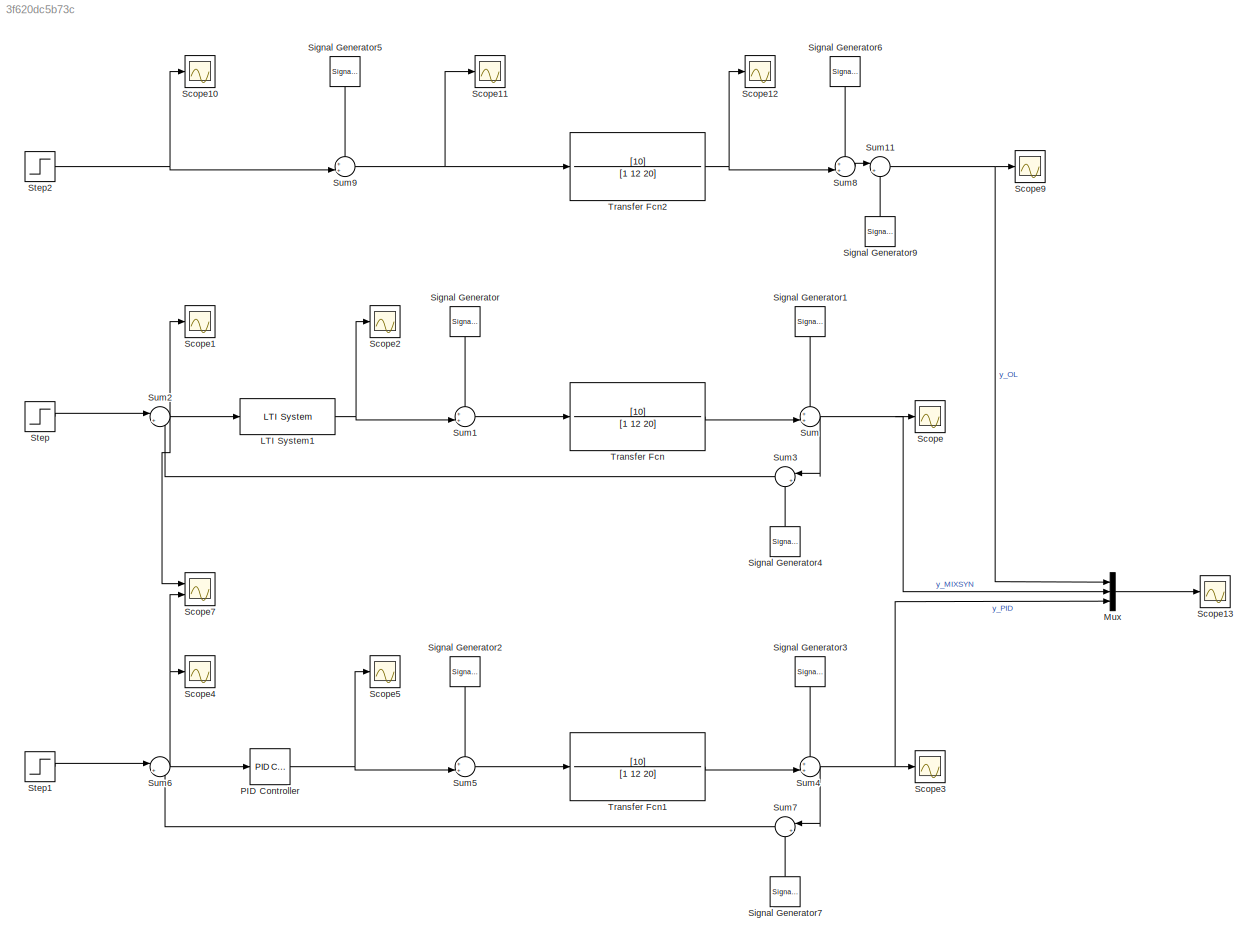
MODEL slx_3f620dc5b73c
KIND model
CONFIG AbsTol = auto
CONFIG EnableMultiTasking = off
CONFIG FixedStep = auto
CONFIG MaxStep = auto
CONFIG MinStep = auto
CONFIG RelTol = 1e-3
CONFIG SampleTimeConstraint = Unconstrained
CONFIG SolverName = VariableStepAuto
CONFIG StartTime = 0.0
CONFIG StopTime = 10
BLOCK [Reference] LTI System1  REF=cstblocks/LTI System
  Ports = [1, 1]
  SourceBlock = cstblocks/LTI System
  SourceProductBaseCode = CT
  SourceType = LTI Block
BLOCK [Mux] Mux
  DisplayOption = bar
  Inputs = 3
  Ports = [3, 1]
BLOCK [Reference] PID Controller  REF=pid_lib/PID Controller
  Ports = [1, 1]
  SourceBlock = pid_lib/PID Controller
  SourceProductBaseCode = SL
  SourceType = PID 1dof
BLOCK [Scope] Scope
  Floating = off
  NumInputPorts = 1
  Ports = [1]
  ScopeSpecificationString = Simulink.scopes.TimeScopeBlockCfg('CurrentConfiguration', extmgr.ConfigurationSet(extmgr.Configuration('Core','General UI',true),extmgr.Configuration('Core','Source UI',true),extmgr.Configuration('Sources','WiredSimulink',true),extmgr.Configuration('Visuals','Time Domain',true,'SerializedDisplays',{struct('MinYLimReal','-1.25171','MaxYLimReal','11.2654','YLabelReal','','MinYLimMag','0.00000','MaxY...<+1405ch>
BLOCK [Scope] Scope1
  Floating = off
  NumInputPorts = 1
  Ports = [1]
  ScopeSpecificationString = Simulink.scopes.TimeScopeBlockCfg('CurrentConfiguration', extmgr.ConfigurationSet(extmgr.Configuration('Core','General UI',true),extmgr.Configuration('Core','Source UI',true),extmgr.Configuration('Sources','WiredSimulink',true,'DataLoggingVariableName','ScopeData1'),extmgr.Configuration('Visuals','Time Domain',true,'SerializedDisplays',{struct('MinYLimReal','-1.76743','MaxYLimReal','11.30749','YLa...<+1411ch>
BLOCK [Scope] Scope10
  Floating = off
  NumInputPorts = 1
  Ports = [1]
  ScopeSpecificationString = Simulink.scopes.TimeScopeBlockCfg('CurrentConfiguration', extmgr.ConfigurationSet(extmgr.Configuration('Core','General UI',true),extmgr.Configuration('Core','Source UI',true),extmgr.Configuration('Sources','WiredSimulink',true,'DataLoggingVariableName','ScopeData8'),extmgr.Configuration('Visuals','Time Domain',true,'SerializedDisplays',{struct('MinYLimReal','-0.12501','MaxYLimReal','1.125','YLabel...<+1400ch>
BLOCK [Scope] Scope11
  Floating = off
  NumInputPorts = 1
  Ports = [1]
  ScopeSpecificationString = Simulink.scopes.TimeScopeBlockCfg('CurrentConfiguration', extmgr.ConfigurationSet(extmgr.Configuration('Core','General UI',true),extmgr.Configuration('Core','Source UI',true),extmgr.Configuration('Sources','WiredSimulink',true,'DataLoggingVariableName','ScopeData9'),extmgr.Configuration('Visuals','Time Domain',true,'SerializedDisplays',{struct('MinYLimReal','9.99992','MaxYLimReal','10.00073','YLab...<+1365ch>
BLOCK [Scope] Scope12
  Floating = off
  NumInputPorts = 1
  Ports = [1]
  ScopeSpecificationString = Simulink.scopes.TimeScopeBlockCfg('CurrentConfiguration', extmgr.ConfigurationSet(extmgr.Configuration('Core','General UI',true),extmgr.Configuration('Core','Source UI',true),extmgr.Configuration('Sources','WiredSimulink',true,'DataLoggingVariableName','ScopeData11'),extmgr.Configuration('Visuals','Time Domain',true),extmgr.Configuration('Tools','Plot Navigation',true),extmgr.Configuration('Tools'...<+41ch>
BLOCK [Scope] Scope13
  Floating = off
  NumInputPorts = 1
  Ports = [1]
  ScopeSpecificationString = Simulink.scopes.TimeScopeBlockCfg('CurrentConfiguration', extmgr.ConfigurationSet(extmgr.Configuration('Core','General UI',true,'FigureColor',[1 1 1]),extmgr.Configuration('Core','Source UI',true),extmgr.Configuration('Sources','WiredSimulink',true,'DataLoggingVariableName','ScopeData2'),extmgr.Configuration('Visuals','Time Domain',true,'SerializedDisplays',{struct('MinYLimReal','-2.47001','MaxYLi...<+1879ch>
BLOCK [Scope] Scope2
  Floating = off
  NumInputPorts = 1
  Ports = [1]
  ScopeSpecificationString = Simulink.scopes.TimeScopeBlockCfg('CurrentConfiguration', extmgr.ConfigurationSet(extmgr.Configuration('Core','General UI',true),extmgr.Configuration('Core','Source UI',true),extmgr.Configuration('Sources','WiredSimulink',true,'DataLoggingVariableName','ScopeData1'),extmgr.Configuration('Visuals','Time Domain',true,'SerializedDisplays',{struct('MinYLimReal','-6624.89317','MaxYLimReal','34102.59944...<+1471ch>
BLOCK [Scope] Scope3
  Floating = off
  NumInputPorts = 1
  Ports = [1]
  ScopeSpecificationString = Simulink.scopes.TimeScopeBlockCfg('CurrentConfiguration', extmgr.ConfigurationSet(extmgr.Configuration('Core','General UI',true),extmgr.Configuration('Core','Source UI',true),extmgr.Configuration('Sources','WiredSimulink',true,'DataLoggingVariableName','ScopeData2'),extmgr.Configuration('Visuals','Time Domain',true,'SerializedDisplays',{struct('MinYLimReal','-2.76215','MaxYLimReal','3.94158','YLab...<+1437ch>
BLOCK [Scope] Scope4
  Floating = off
  NumInputPorts = 1
  Ports = [1]
  ScopeSpecificationString = Simulink.scopes.TimeScopeBlockCfg('CurrentConfiguration', extmgr.ConfigurationSet(extmgr.Configuration('Core','General UI',true),extmgr.Configuration('Core','Source UI',true),extmgr.Configuration('Sources','WiredSimulink',true,'DataLoggingVariableName','ScopeData3'),extmgr.Configuration('Visuals','Time Domain',true,'SerializedDisplays',{struct('MinYLimReal','-1.40087','MaxYLimReal','2.27083','YLab...<+1407ch>
BLOCK [Scope] Scope5
  Floating = off
  NumInputPorts = 1
  Ports = [1]
  ScopeSpecificationString = Simulink.scopes.TimeScopeBlockCfg('CurrentConfiguration', extmgr.ConfigurationSet(extmgr.Configuration('Core','General UI',true),extmgr.Configuration('Core','Source UI',true),extmgr.Configuration('Sources','WiredSimulink',true,'DataLoggingVariableName','ScopeData4'),extmgr.Configuration('Visuals','Time Domain',true,'SerializedDisplays',{struct('MinYLimReal','8.60955','MaxYLimReal','118.68786','YLa...<+1423ch>
BLOCK [Scope] Scope7
  Floating = off
  NumInputPorts = 2
  Ports = [2]
  ScopeSpecificationString = Simulink.scopes.TimeScopeBlockCfg('CurrentConfiguration', extmgr.ConfigurationSet(extmgr.Configuration('Core','General UI',true),extmgr.Configuration('Core','Source UI',true),extmgr.Configuration('Sources','WiredSimulink',true,'DataLoggingVariableName','ScopeData6'),extmgr.Configuration('Visuals','Time Domain',true,'SerializedDisplays',{struct('MinYLimReal','-2.4255','MaxYLimReal','11.72887','YLab...<+1416ch>
BLOCK [Scope] Scope9
  Floating = off
  NumInputPorts = 1
  Ports = [1]
  ScopeSpecificationString = Simulink.scopes.TimeScopeBlockCfg('CurrentConfiguration', extmgr.ConfigurationSet(extmgr.Configuration('Core','General UI',true),extmgr.Configuration('Core','Source UI',true),extmgr.Configuration('Sources','WiredSimulink',true,'DataLoggingVariableName','ScopeData10'),extmgr.Configuration('Visuals','Time Domain',true,'SerializedDisplays',{struct('MinYLimReal','-0.13127','MaxYLimReal','1.18147','YLa...<+1438ch>
BLOCK [SignalGenerator] Signal Generator
  Frequency = 5
  NameLocation = left
  Ports = [0, 1]
  Units = rad/sec
BLOCK [SignalGenerator] Signal Generator1
  Frequency = 5
  NameLocation = left
  Ports = [0, 1]
  Units = rad/sec
BLOCK [SignalGenerator] Signal Generator2
  Frequency = 5
  NameLocation = left
  Ports = [0, 1]
  Units = rad/sec
BLOCK [SignalGenerator] Signal Generator3
  Frequency = 5
  NameLocation = left
  Ports = [0, 1]
  Units = rad/sec
BLOCK [SignalGenerator] Signal Generator4
  Frequency = 500
  NameLocation = right
  Ports = [0, 1]
  Units = rad/sec
BLOCK [SignalGenerator] Signal Generator5
  Frequency = 5
  NameLocation = left
  Ports = [0, 1]
  Units = rad/sec
BLOCK [SignalGenerator] Signal Generator6
  Frequency = 5
  NameLocation = left
  Ports = [0, 1]
  Units = rad/sec
BLOCK [SignalGenerator] Signal Generator7
  Frequency = 500
  NameLocation = right
  Ports = [0, 1]
  Units = rad/sec
BLOCK [SignalGenerator] Signal Generator9
  Frequency = 500
  NameLocation = right
  Ports = [0, 1]
  Units = rad/sec
BLOCK [Step] Step
  After = 10
  SampleTime = 0
  Time = 0
BLOCK [Step] Step1
  After = 10
  SampleTime = 0
  Time = 0
BLOCK [Step] Step2
  After = 10
  SampleTime = 0
  Time = 0
BLOCK [Sum] Sum
  Inputs = ++|
  Ports = [2, 1]
BLOCK [Sum] Sum1
  Inputs = ++|
  Ports = [2, 1]
BLOCK [Sum] Sum11
  Inputs = |++
  Ports = [2, 1]
BLOCK [Sum] Sum2
  Inputs = |+-
  Ports = [2, 1]
BLOCK [Sum] Sum3
  Inputs = |++
  NameLocation = top
  Ports = [2, 1]
BLOCK [Sum] Sum4
  Inputs = ++|
  Ports = [2, 1]
BLOCK [Sum] Sum5
  Inputs = ++|
  Ports = [2, 1]
BLOCK [Sum] Sum6
  Inputs = |+-
  Ports = [2, 1]
BLOCK [Sum] Sum7
  Inputs = |++
  NameLocation = top
  Ports = [2, 1]
BLOCK [Sum] Sum8
  Inputs = ++|
  Ports = [2, 1]
BLOCK [Sum] Sum9
  Inputs = ++|
  Ports = [2, 1]
BLOCK [TransferFcn] Transfer Fcn
  Denominator = [1 12 20]
  Numerator = [10]
BLOCK [TransferFcn] Transfer Fcn1
  Denominator = [1 12 20]
  Numerator = [10]
BLOCK [TransferFcn] Transfer Fcn2
  Denominator = [1 12 20]
  Numerator = [10]
NET LTI System1:1 -> Scope2:1, Sum1:2
LINE Mux:1 -> Scope13:1
NET PID Controller:1 -> Scope5:1, Sum5:2
LINE Signal Generator1:1 -> Sum:1
LINE Signal Generator2:1 -> Sum5:1
LINE Signal Generator3:1 -> Sum4:1
LINE Signal Generator4:1 -> Sum3:2
LINE Signal Generator5:1 -> Sum9:1
LINE Signal Generator6:1 -> Sum8:1
LINE Signal Generator7:1 -> Sum7:2
LINE Signal Generator9:1 -> Sum11:2
LINE Signal Generator:1 -> Sum1:1
LINE Step1:1 -> Sum6:1
NET Step2:1 -> Scope10:1, Sum9:2
LINE Step:1 -> Sum2:1
NET Sum11:1 -> Mux:1, Scope9:1
LINE Sum1:1 -> Transfer Fcn:1
NET Sum2:1 -> LTI System1:1, Scope1:1, Scope7:1
LINE Sum3:1 -> Sum2:2
NET Sum4:1 -> Mux:3, Scope3:1, Sum7:1
LINE Sum5:1 -> Transfer Fcn1:1
NET Sum6:1 -> PID Controller:1, Scope4:1, Scope7:2
LINE Sum7:1 -> Sum6:2
LINE Sum8:1 -> Sum11:1
NET Sum9:1 -> Scope11:1, Transfer Fcn2:1
NET Sum:1 -> Mux:2, Scope:1, Sum3:1
LINE Transfer Fcn1:1 -> Sum4:2
NET Transfer Fcn2:1 -> Scope12:1, Sum8:2
LINE Transfer Fcn:1 -> Sum:2
note: NET lines group one-source signal fan-out (src -> all destinations, sorted); 1:1 wires keep LINE
